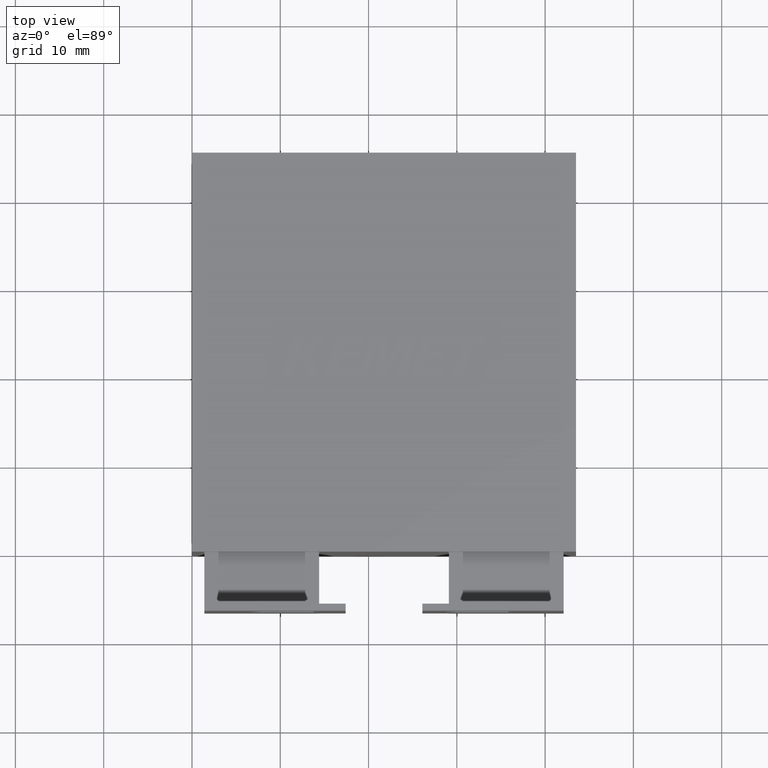
[diagram: clean part render]
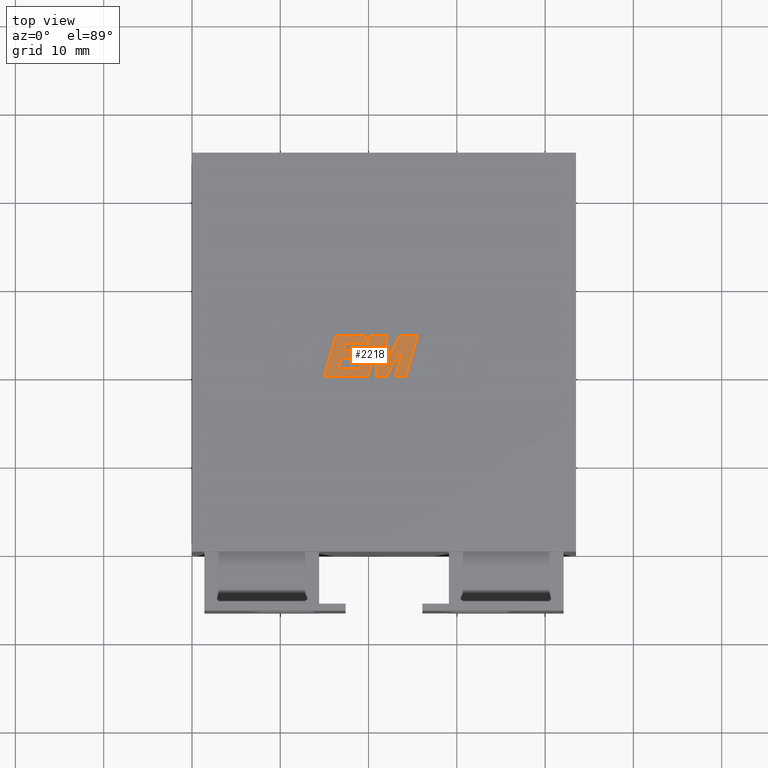
[diagram: same view with one face highlighted and labeled with its STEP entity id]
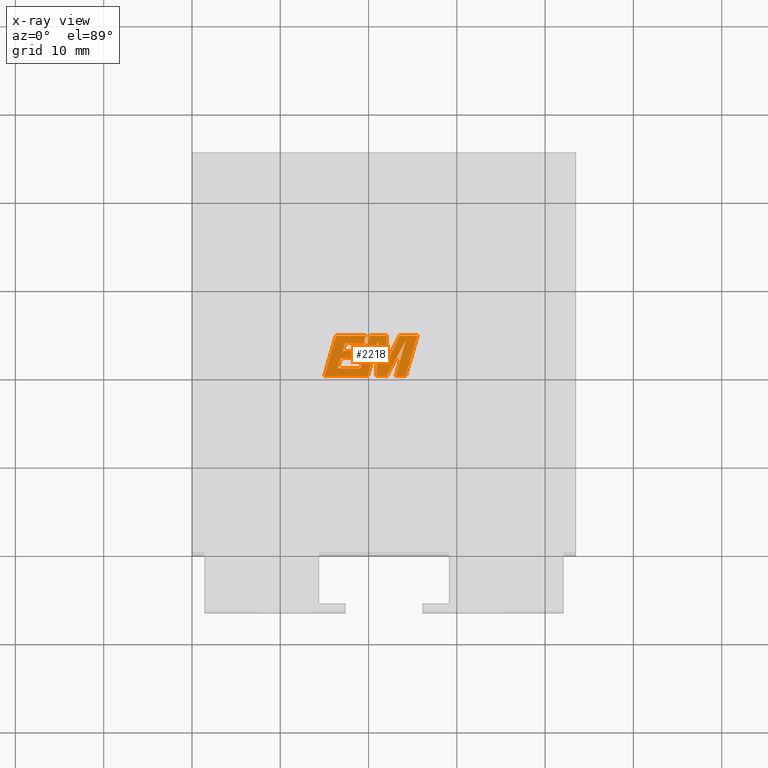
[diagram: x-ray of the same camera — body ghosted, the highlighted face saturated]
A machine part, top view. The second image highlights one B-rep face of the part: STEP entity #2218.
The next image is the same camera in x-ray: the body ghosted, the highlighted face saturated — about 0% of this face is hidden behind the body in this view.
In plain terms, the highlighted planar face has unit normal (0, 0, -1).
Its self-contained STEP definition (entity closure, byte-faithful):
#37 = CARTESIAN_POINT ( 'NONE',  ( 16.85828259423837500, 21.88224828064108300, 30.40500000000000100 ) ) ;
#76 = VERTEX_POINT ( 'NONE', #1964 ) ;
#95 = LINE ( 'NONE', #3317, #1131 ) ;
#97 = LINE ( 'NONE', #352, #2448 ) ;
#109 = ORIENTED_EDGE ( 'NONE', *, *, #311, .T. ) ;
#119 = LINE ( 'NONE', #663, #241 ) ;
#122 = DIRECTION ( 'NONE',  ( 1.000000000000000000, 0.0000000000000000000, 0.0000000000000000000 ) ) ;
#134 = CARTESIAN_POINT ( 'NONE',  ( 19.67942644740472600, 24.45022825411974300, 30.40500000000000100 ) ) ;
#148 = CARTESIAN_POINT ( 'NONE',  ( 19.43205044275801200, 23.57925045510423000, 30.40500000000000100 ) ) ;
#162 = DIRECTION ( 'NONE',  ( -0.05596501978068172500, -0.9984327301130245800, 0.0000000000000000000 ) ) ;
#193 = LINE ( 'NONE', #2733, #549 ) ;
#219 = DIRECTION ( 'NONE',  ( -1.000000000000000000, 0.0000000000000000000, 0.0000000000000000000 ) ) ;
#229 = CARTESIAN_POINT ( 'NONE',  ( 19.07080912752578400, 20.74498649102940500, 30.40500000000000100 ) ) ;
#241 = VECTOR ( 'NONE', #1692, 1000.000000000000000 ) ;
#242 = ORIENTED_EDGE ( 'NONE', *, *, #385, .T. ) ;
#260 = LINE ( 'NONE', #1213, #2355 ) ;
#262 = CARTESIAN_POINT ( 'NONE',  ( 24.23387190869865600, 23.96776156610042100, 30.40500000000000100 ) ) ;
#311 = EDGE_CURVE ( 'NONE', #1669, #862, #2757, .T. ) ;
#333 = AXIS2_PLACEMENT_3D ( 'NONE', #1426, #3295, #1688 ) ;
#352 = CARTESIAN_POINT ( 'NONE',  ( 16.53424507184131200, 20.74498649102940500, 30.40500000000000100 ) ) ;
#378 = DIRECTION ( 'NONE',  ( -0.2762517575166413800, -0.9610853065513834700, 0.0000000000000000000 ) ) ;
#379 = EDGE_CURVE ( 'NONE', #2532, #1540, #2676, .T. ) ;
#385 = EDGE_CURVE ( 'NONE', #862, #2843, #2098, .T. ) ;
#392 = CARTESIAN_POINT ( 'NONE',  ( 22.07299102946614900, 19.87443999999985800, 30.40500000000000100 ) ) ;
#401 = ORIENTED_EDGE ( 'NONE', *, *, #1476, .T. ) ;
#434 = VERTEX_POINT ( 'NONE', #229 ) ;
#464 = LINE ( 'NONE', #1942, #2457 ) ;
#513 = DIRECTION ( 'NONE',  ( 0.2763139702539123600, 0.9610674221107071700, 0.0000000000000000000 ) ) ;
#525 = CARTESIAN_POINT ( 'NONE',  ( 21.90852838472134700, 21.18122633371032700, 30.40500000000000100 ) ) ;
#544 = DIRECTION ( 'NONE',  ( -1.000000000000000000, 0.0000000000000000000, 0.0000000000000000000 ) ) ;
#549 = VECTOR ( 'NONE', #1141, 1000.000000000000100 ) ;
#558 = VECTOR ( 'NONE', #378, 1000.000000000000100 ) ;
#565 = EDGE_CURVE ( 'NONE', #1040, #2665, #2432, .T. ) ;
#576 = PLANE ( 'NONE',  #333 ) ;
#586 = VECTOR ( 'NONE', #219, 1000.000000000000000 ) ;
#623 = ORIENTED_EDGE ( 'NONE', *, *, #3343, .T. ) ;
#632 = VERTEX_POINT ( 'NONE', #1366 ) ;
#634 = EDGE_LOOP ( 'NONE', ( #1537, #1150, #2646, #401, #1384, #760, #1320, #623, #1787, #2748, #3107, #2456, #1616, #3027, #109, #242, #2869, #2179, #1905, #3233, #1634, #2873, #2272 ) ) ;
#663 = CARTESIAN_POINT ( 'NONE',  ( 23.05840457866102600, 19.87443999999985800, 30.40500000000000100 ) ) ;
#684 = VERTEX_POINT ( 'NONE', #2780 ) ;
#748 = VECTOR ( 'NONE', #2927, 1000.000000000000000 ) ;
#760 = ORIENTED_EDGE ( 'NONE', *, *, #2917, .T. ) ;
#795 = EDGE_CURVE ( 'NONE', #1204, #434, #1157, .T. ) ;
#827 = EDGE_CURVE ( 'NONE', #2843, #684, #1562, .T. ) ;
#839 = EDGE_CURVE ( 'NONE', #1741, #1517, #2784, .T. ) ;
#848 = CARTESIAN_POINT ( 'NONE',  ( 19.06360211008109600, 22.72815456332500600, 30.40500000000000100 ) ) ;
#856 = CARTESIAN_POINT ( 'NONE',  ( 16.29898743055748500, 24.45022825411974300, 30.40500000000000100 ) ) ;
#862 = VERTEX_POINT ( 'NONE', #2850 ) ;
#885 = CARTESIAN_POINT ( 'NONE',  ( 20.13583378465078500, 24.45022825411974300, 30.40500000000000100 ) ) ;
#913 = VECTOR ( 'NONE', #3445, 1000.000000000000000 ) ;
#916 = CARTESIAN_POINT ( 'NONE',  ( 19.67942644740472600, 24.45022825411974300, 30.40500000000000100 ) ) ;
#948 = VECTOR ( 'NONE', #2275, 1000.000000000000200 ) ;
#1012 = CARTESIAN_POINT ( 'NONE',  ( 18.82198615413673800, 21.88224828064108300, 30.40500000000000100 ) ) ;
#1040 = VERTEX_POINT ( 'NONE', #2550 ) ;
#1045 = CARTESIAN_POINT ( 'NONE',  ( 17.09962028696061500, 22.72815456332500600, 30.40500000000000100 ) ) ;
#1057 = EDGE_CURVE ( 'NONE', #2665, #3362, #2779, .T. ) ;
#1069 = CARTESIAN_POINT ( 'NONE',  ( 21.90852838472134700, 21.18122633371032700, 30.40500000000000100 ) ) ;
#1131 = VECTOR ( 'NONE', #2816, 1000.000000000000000 ) ;
#1141 = DIRECTION ( 'NONE',  ( 0.2732148821746205900, 0.9619530280415505800, 0.0000000000000000000 ) ) ;
#1150 = ORIENTED_EDGE ( 'NONE', *, *, #3385, .T. ) ;
#1157 = LINE ( 'NONE', #3370, #558 ) ;
#1163 = EDGE_CURVE ( 'NONE', #3204, #76, #119, .T. ) ;
#1175 = DIRECTION ( 'NONE',  ( -1.000000000000000000, 0.0000000000000000000, 0.0000000000000000000 ) ) ;
#1204 = VERTEX_POINT ( 'NONE', #885 ) ;
#1213 = CARTESIAN_POINT ( 'NONE',  ( 17.34727455482921600, 23.57925045510423000, 30.40500000000000100 ) ) ;
#1288 = VECTOR ( 'NONE', #122, 1000.000000000000000 ) ;
#1320 = ORIENTED_EDGE ( 'NONE', *, *, #2233, .T. ) ;
#1330 = CARTESIAN_POINT ( 'NONE',  ( 23.52984636118058500, 24.45022825411974300, 30.40500000000000100 ) ) ;
#1366 = CARTESIAN_POINT ( 'NONE',  ( 16.53424507184131200, 20.74498649102940500, 30.40500000000000100 ) ) ;
#1367 = DIRECTION ( 'NONE',  ( 0.2746459304916912300, 0.9615454294334475600, 0.0000000000000000000 ) ) ;
#1381 = EDGE_CURVE ( 'NONE', #684, #3205, #2377, .T. ) ;
#1384 = ORIENTED_EDGE ( 'NONE', *, *, #795, .T. ) ;
#1426 = CARTESIAN_POINT ( 'NONE',  ( -0.7125363877748276400, 3.133653313437075200, 30.40499999999999400 ) ) ;
#1465 = LINE ( 'NONE', #2916, #586 ) ;
#1476 = EDGE_CURVE ( 'NONE', #1540, #1204, #1465, .T. ) ;
#1517 = VERTEX_POINT ( 'NONE', #262 ) ;
#1536 = LINE ( 'NONE', #1987, #3300 ) ;
#1537 = ORIENTED_EDGE ( 'NONE', *, *, #2880, .T. ) ;
#1540 = VERTEX_POINT ( 'NONE', #2680 ) ;
#1547 = LINE ( 'NONE', #916, #3402 ) ;
#1551 = VERTEX_POINT ( 'NONE', #1615 ) ;
#1556 = EDGE_CURVE ( 'NONE', #3205, #1741, #2251, .T. ) ;
#1562 = LINE ( 'NONE', #2040, #3421 ) ;
#1564 = VECTOR ( 'NONE', #544, 1000.000000000000000 ) ;
#1615 = CARTESIAN_POINT ( 'NONE',  ( 25.53675596823577700, 24.45022825411974300, 30.40500000000000100 ) ) ;
#1616 = ORIENTED_EDGE ( 'NONE', *, *, #1691, .T. ) ;
#1634 = ORIENTED_EDGE ( 'NONE', *, *, #1705, .T. ) ;
#1635 = CARTESIAN_POINT ( 'NONE',  ( 23.05840457866102600, 19.87443999999985800, 30.40500000000000100 ) ) ;
#1669 = VERTEX_POINT ( 'NONE', #856 ) ;
#1671 = CARTESIAN_POINT ( 'NONE',  ( 19.91179014752762200, 19.87443999999985800, 30.40500000000000100 ) ) ;
#1688 = DIRECTION ( 'NONE',  ( -1.000000000000000000, 0.0000000000000000000, 0.0000000000000000000 ) ) ;
#1691 = EDGE_CURVE ( 'NONE', #3404, #2304, #193, .T. ) ;
#1692 = DIRECTION ( 'NONE',  ( 1.000000000000000000, 0.0000000000000000000, 0.0000000000000000000 ) ) ;
#1705 = EDGE_CURVE ( 'NONE', #1517, #3204, #464, .T. ) ;
#1707 = VECTOR ( 'NONE', #2114, 1000.000000000000000 ) ;
#1741 = VERTEX_POINT ( 'NONE', #2490 ) ;
#1744 = DIRECTION ( 'NONE',  ( 0.2759782365590802100, 0.9611638845408937400, 0.0000000000000000000 ) ) ;
#1756 = CARTESIAN_POINT ( 'NONE',  ( 21.08146960254265800, 23.94814400893627100, 30.40500000000000100 ) ) ;
#1787 = ORIENTED_EDGE ( 'NONE', *, *, #2729, .T. ) ;
#1791 = LINE ( 'NONE', #2834, #3289 ) ;
#1804 = VECTOR ( 'NONE', #1367, 1000.000000000000100 ) ;
#1833 = DIRECTION ( 'NONE',  ( 0.2793947940878301900, 0.9601763114327591700, 0.0000000000000000000 ) ) ;
#1896 = CARTESIAN_POINT ( 'NONE',  ( 20.85312680230717300, 19.87443999999985800, 30.40500000000000100 ) ) ;
#1905 = ORIENTED_EDGE ( 'NONE', *, *, #1556, .T. ) ;
#1914 = EDGE_CURVE ( 'NONE', #76, #1551, #2167, .T. ) ;
#1942 = CARTESIAN_POINT ( 'NONE',  ( 24.23387190869865600, 23.96776156610042100, 30.40500000000000100 ) ) ;
#1964 = CARTESIAN_POINT ( 'NONE',  ( 24.22118310576136900, 19.87443999999985800, 30.40500000000000100 ) ) ;
#1987 = CARTESIAN_POINT ( 'NONE',  ( 25.53675596823577700, 24.45022825411974300, 30.40500000000000100 ) ) ;
#2010 = LINE ( 'NONE', #2740, #1804 ) ;
#2040 = CARTESIAN_POINT ( 'NONE',  ( 19.91179014752762200, 19.87443999999985800, 30.40500000000000100 ) ) ;
#2092 = CARTESIAN_POINT ( 'NONE',  ( 14.98225977203588900, 19.87443999999985800, 30.40500000000000100 ) ) ;
#2093 = VERTEX_POINT ( 'NONE', #37 ) ;
#2098 = LINE ( 'NONE', #2092, #913 ) ;
#2114 = DIRECTION ( 'NONE',  ( 0.05375259206908333100, 0.9985542843760947300, 0.0000000000000000000 ) ) ;
#2167 = LINE ( 'NONE', #2670, #2370 ) ;
#2176 = VECTOR ( 'NONE', #162, 1000.000000000000100 ) ;
#2179 = ORIENTED_EDGE ( 'NONE', *, *, #1381, .T. ) ;
#2215 = DIRECTION ( 'NONE',  ( 0.2740217765954066100, 0.9617234872620595800, 0.0000000000000000000 ) ) ;
#2218 = ADVANCED_FACE ( 'NONE', ( #2633 ), #576, .F. ) ;
#2233 = EDGE_CURVE ( 'NONE', #632, #2093, #97, .T. ) ;
#2251 = LINE ( 'NONE', #2407, #748 ) ;
#2254 = DIRECTION ( 'NONE',  ( -1.000000000000000000, 0.0000000000000000000, 0.0000000000000000000 ) ) ;
#2269 = DIRECTION ( 'NONE',  ( 1.000000000000000000, 0.0000000000000000000, 0.0000000000000000000 ) ) ;
#2272 = ORIENTED_EDGE ( 'NONE', *, *, #1914, .T. ) ;
#2275 = DIRECTION ( 'NONE',  ( 0.4668459304955219200, 0.8843386665637607000, 0.0000000000000000000 ) ) ;
#2280 = CARTESIAN_POINT ( 'NONE',  ( 16.85828259423837500, 21.88224828064108300, 30.40500000000000100 ) ) ;
#2304 = VERTEX_POINT ( 'NONE', #134 ) ;
#2312 = EDGE_CURVE ( 'NONE', #2304, #1669, #1547, .T. ) ;
#2355 = VECTOR ( 'NONE', #2269, 1000.000000000000000 ) ;
#2370 = VECTOR ( 'NONE', #513, 999.9999999999998900 ) ;
#2377 = LINE ( 'NONE', #1756, #2176 ) ;
#2391 = VERTEX_POINT ( 'NONE', #1012 ) ;
#2407 = CARTESIAN_POINT ( 'NONE',  ( 20.85312680230717300, 19.87443999999985800, 30.40500000000000100 ) ) ;
#2430 = DIRECTION ( 'NONE',  ( -0.2760118818968579400, -0.9611542233438684600, 0.0000000000000000000 ) ) ;
#2432 = LINE ( 'NONE', #848, #1564 ) ;
#2448 = VECTOR ( 'NONE', #2215, 1000.000000000000200 ) ;
#2456 = ORIENTED_EDGE ( 'NONE', *, *, #3450, .T. ) ;
#2457 = VECTOR ( 'NONE', #2430, 1000.000000000000100 ) ;
#2490 = CARTESIAN_POINT ( 'NONE',  ( 22.07299102946614900, 19.87443999999985800, 30.40500000000000100 ) ) ;
#2532 = VERTEX_POINT ( 'NONE', #1069 ) ;
#2548 = VERTEX_POINT ( 'NONE', #1330 ) ;
#2550 = CARTESIAN_POINT ( 'NONE',  ( 19.06360211008109600, 22.72815456332500600, 30.40500000000000100 ) ) ;
#2585 = CARTESIAN_POINT ( 'NONE',  ( 16.29898743055748500, 24.45022825411974300, 30.40500000000000100 ) ) ;
#2633 = FACE_OUTER_BOUND ( 'NONE', #634, .T. ) ;
#2646 = ORIENTED_EDGE ( 'NONE', *, *, #379, .T. ) ;
#2662 = LINE ( 'NONE', #2280, #1288 ) ;
#2665 = VERTEX_POINT ( 'NONE', #3490 ) ;
#2670 = CARTESIAN_POINT ( 'NONE',  ( 24.22118310576136900, 19.87443999999985800, 30.40500000000000100 ) ) ;
#2676 = LINE ( 'NONE', #525, #1707 ) ;
#2680 = CARTESIAN_POINT ( 'NONE',  ( 22.08450011650416700, 24.45022825411974300, 30.40500000000000100 ) ) ;
#2729 = EDGE_CURVE ( 'NONE', #2391, #1040, #2010, .T. ) ;
#2733 = CARTESIAN_POINT ( 'NONE',  ( 19.43205044275801200, 23.57925045510423000, 30.40500000000000100 ) ) ;
#2740 = CARTESIAN_POINT ( 'NONE',  ( 18.82198615413673800, 21.88224828064108300, 30.40500000000000100 ) ) ;
#2748 = ORIENTED_EDGE ( 'NONE', *, *, #565, .T. ) ;
#2757 = LINE ( 'NONE', #2585, #3397 ) ;
#2779 = LINE ( 'NONE', #1045, #2900 ) ;
#2780 = CARTESIAN_POINT ( 'NONE',  ( 21.08146960254265800, 23.94814400893627100, 30.40500000000000100 ) ) ;
#2784 = LINE ( 'NONE', #392, #948 ) ;
#2816 = DIRECTION ( 'NONE',  ( -1.000000000000000000, 0.0000000000000000000, 0.0000000000000000000 ) ) ;
#2834 = CARTESIAN_POINT ( 'NONE',  ( 23.52984636118058500, 24.45022825411974300, 30.40500000000000100 ) ) ;
#2843 = VERTEX_POINT ( 'NONE', #1671 ) ;
#2850 = CARTESIAN_POINT ( 'NONE',  ( 14.98225977203588900, 19.87443999999985800, 30.40500000000000100 ) ) ;
#2869 = ORIENTED_EDGE ( 'NONE', *, *, #827, .T. ) ;
#2873 = ORIENTED_EDGE ( 'NONE', *, *, #1163, .T. ) ;
#2880 = EDGE_CURVE ( 'NONE', #1551, #2548, #1536, .T. ) ;
#2900 = VECTOR ( 'NONE', #1833, 1000.000000000000200 ) ;
#2916 = CARTESIAN_POINT ( 'NONE',  ( 22.08450011650416700, 24.45022825411974300, 30.40500000000000100 ) ) ;
#2917 = EDGE_CURVE ( 'NONE', #434, #632, #95, .T. ) ;
#2927 = DIRECTION ( 'NONE',  ( 1.000000000000000000, 0.0000000000000000000, 0.0000000000000000000 ) ) ;
#3027 = ORIENTED_EDGE ( 'NONE', *, *, #2312, .T. ) ;
#3061 = DIRECTION ( 'NONE',  ( -0.4443210308329065800, -0.8958676361827027100, 0.0000000000000000000 ) ) ;
#3107 = ORIENTED_EDGE ( 'NONE', *, *, #1057, .T. ) ;
#3204 = VERTEX_POINT ( 'NONE', #1635 ) ;
#3205 = VERTEX_POINT ( 'NONE', #1896 ) ;
#3233 = ORIENTED_EDGE ( 'NONE', *, *, #839, .T. ) ;
#3289 = VECTOR ( 'NONE', #3061, 1000.000000000000000 ) ;
#3295 = DIRECTION ( 'NONE',  ( 0.0000000000000000000, 0.0000000000000000000, -1.000000000000000000 ) ) ;
#3300 = VECTOR ( 'NONE', #1175, 1000.000000000000000 ) ;
#3317 = CARTESIAN_POINT ( 'NONE',  ( 19.07080912752578400, 20.74498649102940500, 30.40500000000000100 ) ) ;
#3343 = EDGE_CURVE ( 'NONE', #2093, #2391, #2662, .T. ) ;
#3362 = VERTEX_POINT ( 'NONE', #3377 ) ;
#3370 = CARTESIAN_POINT ( 'NONE',  ( 20.13583378465078500, 24.45022825411974300, 30.40500000000000100 ) ) ;
#3377 = CARTESIAN_POINT ( 'NONE',  ( 17.34727455482921600, 23.57925045510423000, 30.40500000000000100 ) ) ;
#3385 = EDGE_CURVE ( 'NONE', #2548, #2532, #1791, .T. ) ;
#3397 = VECTOR ( 'NONE', #3426, 1000.000000000000100 ) ;
#3402 = VECTOR ( 'NONE', #2254, 1000.000000000000000 ) ;
#3404 = VERTEX_POINT ( 'NONE', #148 ) ;
#3421 = VECTOR ( 'NONE', #1744, 999.9999999999998900 ) ;
#3426 = DIRECTION ( 'NONE',  ( -0.2765379750249961600, -0.9610029908221277000, 0.0000000000000000000 ) ) ;
#3445 = DIRECTION ( 'NONE',  ( 1.000000000000000000, 0.0000000000000000000, 0.0000000000000000000 ) ) ;
#3450 = EDGE_CURVE ( 'NONE', #3362, #3404, #260, .T. ) ;
#3490 = CARTESIAN_POINT ( 'NONE',  ( 17.09962028696061500, 22.72815456332500600, 30.40500000000000100 ) ) ;